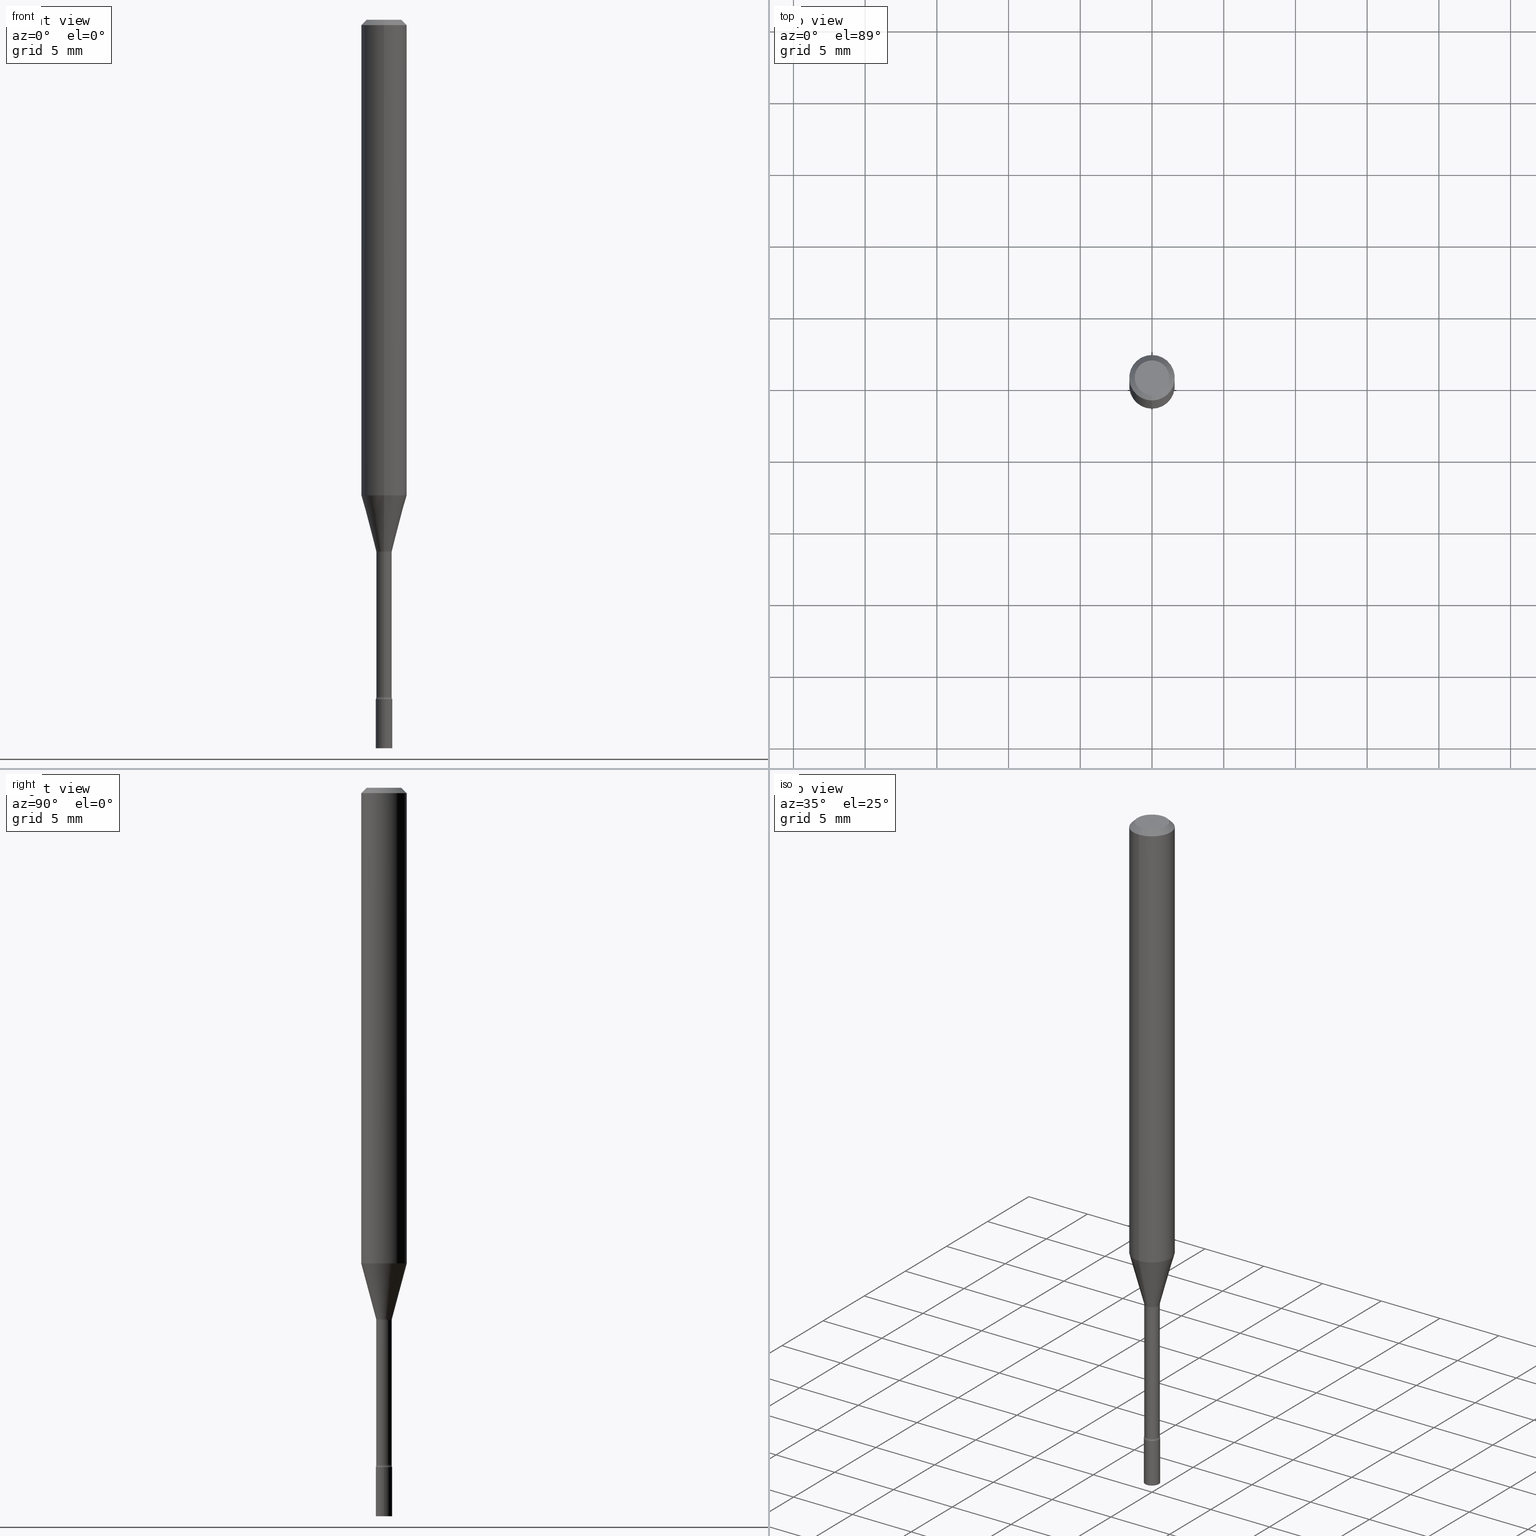
[diagram: canonical four-view strip — front | top / right | iso, engineering-drawing reading convention]
A machine part, canonical four-view strip (front | top / right | iso — engineering-drawing reading convention). The complete STEP part file that produces these views, byte-faithful:
ISO-10303-21;
HEADER;
FILE_DESCRIPTION (( 'STEP AP203' ),
    '1' );
FILE_NAME ('04302.STEP',
    '2024-03-08T22:59:19',
    ( '' ),
    ( '' ),
    'SwSTEP 2.0',
    'SolidWorks 2023',
    '' );
FILE_SCHEMA (( 'CONFIG_CONTROL_DESIGN' ));
ENDSEC;

DATA;
#1 = FACE_OUTER_BOUND ( 'NONE', #24, .T. ) ;
#2 = VERTEX_POINT ( 'NONE', #56 ) ;
#3 = CARTESIAN_POINT ( 'NONE',  ( 7.069349927902442587E-46, -1.009377494576416599E-31, -2.890883579152316100E-17 ) ) ;
#4 = ORIENTED_EDGE ( 'NONE', *, *, #378, .F. ) ;
#5 = PERSON_AND_ORGANIZATION ( #131, #226 ) ;
#6 = DIRECTION ( 'NONE',  ( -2.445394196737374022E-29, 3.491588183818847574E-15, 1.000000000000000000 ) ) ;
#7 = ORIENTED_EDGE ( 'NONE', *, *, #84, .F. ) ;
#8 = VECTOR ( 'NONE', #81, 39.37007874015748143 ) ;
#9 = EDGE_CURVE ( 'NONE', #171, #50, #23, .T. ) ;
#10 = DIRECTION ( 'NONE',  ( -6.982962677686265922E-15, -1.000000000000000000, 3.491588183818847574E-15 ) ) ;
#11 = VERTEX_POINT ( 'NONE', #217 ) ;
#12 = APPROVAL ( #31, 'UNSPECIFIED' ) ;
#13 = ORIENTED_EDGE ( 'NONE', *, *, #242, .F. ) ;
#14 = PRODUCT_DEFINITION ( 'UNKNOWN', '', #208, #504 ) ;
#15 = APPROVAL_DATE_TIME ( #375, #435 ) ;
#16 = ORIENTED_EDGE ( 'NONE', *, *, #218, .F. ) ;
#17 = DIRECTION ( 'NONE',  ( -6.982962677686265133E-15, -1.000000000000000000, 0.000000000000000000 ) ) ;
#18 = CARTESIAN_POINT ( 'NONE',  ( -2.524341007983227427E-16, -0.03615000000000510860, -1.461974787463810932 ) ) ;
#19 = PERSON_AND_ORGANIZATION_ROLE ( 'design_owner' ) ;
#20 = AXIS2_PLACEMENT_3D ( 'NONE', #3, #6, #285 ) ;
#21 = AXIS2_PLACEMENT_3D ( 'NONE', #359, #133, #261 ) ;
#22 = PERSON_AND_ORGANIZATION ( #131, #226 ) ;
#23 = CIRCLE ( 'NONE', #512, 0.01500000000000002720 ) ;
#24 = EDGE_LOOP ( 'NONE', ( #203, #134, #260, #246 ) ) ;
#25 = COORDINATED_UNIVERSAL_TIME_OFFSET ( 5, 0, .BEHIND. ) ;
#26 = DIRECTION ( 'NONE',  ( -6.982962677686265133E-15, -1.000000000000000000, 0.000000000000000000 ) ) ;
#27 = COORDINATED_UNIVERSAL_TIME_OFFSET ( 5, 0, .BEHIND. ) ;
#28 = DIRECTION ( 'NONE',  ( -1.000000000000000000, 6.982962677686265922E-15, -4.883557194083112340E-29 ) ) ;
#29 = FACE_OUTER_BOUND ( 'NONE', #259, .T. ) ;
#30 = CIRCLE ( 'NONE', #340, 0.02249999999999999917 ) ;
#31 = APPROVAL_STATUS ( 'not_yet_approved' ) ;
#32 = CYLINDRICAL_SURFACE ( 'NONE', #406, 0.02115000000000001601 ) ;
#33 = CIRCLE ( 'NONE', #71, 0.02166111260566397703 ) ;
#34 = CARTESIAN_POINT ( 'NONE',  ( 4.440892098500625669E-16, 0.06250000000000000000, -2.182242614886779734E-16 ) ) ;
#35 = CYLINDRICAL_SURFACE ( 'NONE', #49, 0.06250000000000000000 ) ;
#36 = DIRECTION ( 'NONE',  ( -2.445394196737374022E-29, 3.491588183818847574E-15, 1.000000000000000000 ) ) ;
#37 = DIRECTION ( 'NONE',  ( -2.445394196737374022E-29, 3.491588183818847574E-15, 1.000000000000000000 ) ) ;
#38 = PERSON_AND_ORGANIZATION_ROLE ( 'creator' ) ;
#39 = PLANE ( 'NONE',  #21 ) ;
#40 = CARTESIAN_POINT ( 'NONE',  ( 1.502797886133067365E-16, 0.02114999999999489511, -1.461974787463810932 ) ) ;
#41 = VERTEX_POINT ( 'NONE', #333 ) ;
#42 = FACE_OUTER_BOUND ( 'NONE', #344, .T. ) ;
#43 = APPROVAL ( #58, 'UNSPECIFIED' ) ;
#44 = ORIENTED_EDGE ( 'NONE', *, *, #464, .T. ) ;
#45 = DIRECTION ( 'NONE',  ( -6.982962677686265922E-15, -1.000000000000000000, 3.491588183818847574E-15 ) ) ;
#46 = EDGE_LOOP ( 'NONE', ( #62, #323, #178, #302 ) ) ;
#47 = EDGE_CURVE ( 'NONE', #41, #448, #227, .T. ) ;
#48 = CARTESIAN_POINT ( 'NONE',  ( -1.476896606330646500E-16, -0.02115000000000001601, 7.384709008776868973E-17 ) ) ;
#49 = AXIS2_PLACEMENT_3D ( 'NONE', #420, #149, #148 ) ;
#50 = VERTEX_POINT ( 'NONE', #379 ) ;
#51 = VECTOR ( 'NONE', #314, 39.37007874015748143 ) ;
#52 = PRODUCT ( '04302', '04302', '', ( #345 ) ) ;
#53 = ORIENTED_EDGE ( 'NONE', *, *, #326, .F. ) ;
#54 = EDGE_CURVE ( 'NONE', #171, #138, #334, .T. ) ;
#55 = ORIENTED_EDGE ( 'NONE', *, *, #182, .T. ) ;
#56 = CARTESIAN_POINT ( 'NONE',  ( 0.02249999999999999917, -7.140079337934232008E-15, -2.000000000000000000 ) ) ;
#57 = CC_DESIGN_APPROVAL ( #43, ( #208 ) ) ;
#58 = APPROVAL_STATUS ( 'not_yet_approved' ) ;
#59 = ORIENTED_EDGE ( 'NONE', *, *, #400, .T. ) ;
#60 = DIRECTION ( 'NONE',  ( -6.982962677686267499E-15, -1.000000000000000000, 0.000000000000000000 ) ) ;
#61 = ADVANCED_FACE ( 'NONE', ( #264 ), #103, .T. ) ;
#62 = ORIENTED_EDGE ( 'NONE', *, *, #400, .F. ) ;
#63 = VECTOR ( 'NONE', #142, 39.37007874015748143 ) ;
#64 = FACE_OUTER_BOUND ( 'NONE', #175, .T. ) ;
#65 = ADVANCED_FACE ( 'NONE', ( #508 ), #35, .T. ) ;
#66 = LINE ( 'NONE', #457, #51 ) ;
#67 = PERSON_AND_ORGANIZATION ( #131, #226 ) ;
#68 = PLANE ( 'NONE',  #427 ) ;
#69 = CARTESIAN_POINT ( 'NONE',  ( 0.000000000000000000, 0.000000000000000000, 0.000000000000000000 ) ) ;
#70 = CIRCLE ( 'NONE', #479, 0.02249999999999999917 ) ;
#71 = AXIS2_PLACEMENT_3D ( 'NONE', #204, #439, #85 ) ;
#72 = DIRECTION ( 'NONE',  ( -6.982962677686266711E-15, -1.000000000000000000, 3.491588183818847968E-15 ) ) ;
#73 = FACE_OUTER_BOUND ( 'NONE', #371, .T. ) ;
#74 = CARTESIAN_POINT ( 'NONE',  ( 3.668091295106068531E-31, -5.237382275728282109E-17, -0.01500000000000003067 ) ) ;
#75 = COORDINATED_UNIVERSAL_TIME_OFFSET ( 5, 0, .BEHIND. ) ;
#76 = DIRECTION ( 'NONE',  ( -2.445394196737374022E-29, 3.491588183818847574E-15, 1.000000000000000000 ) ) ;
#77 = PERSON_AND_ORGANIZATION ( #131, #226 ) ;
#78 = DIRECTION ( 'NONE',  ( -6.982962677686266711E-15, -1.000000000000000000, 0.000000000000000000 ) ) ;
#79 = CARTESIAN_POINT ( 'NONE',  ( -0.02249999999999999917, 1.598721155460225359E-16, -1.106760395307353780E-30 ) ) ;
#80 = AXIS2_PLACEMENT_3D ( 'NONE', #460, #273, #284 ) ;
#81 = DIRECTION ( 'NONE',  ( -2.445394196737373742E-29, 3.491588183818847574E-15, 1.000000000000000000 ) ) ;
#82 = ORIENTED_EDGE ( 'NONE', *, *, #415, .F. ) ;
#83 = CARTESIAN_POINT ( 'NONE',  ( 3.575213738171894647E-29, -5.104457688289070093E-15, -1.461974787463810932 ) ) ;
#84 = EDGE_CURVE ( 'NONE', #249, #138, #317, .T. ) ;
#85 = DIRECTION ( 'NONE',  ( -6.982962677686266711E-15, -1.000000000000000000, 0.000000000000000000 ) ) ;
#86 = APPLICATION_CONTEXT ( 'configuration controlled 3d designs of mechanical parts and assemblies' ) ;
#87 = AXIS2_PLACEMENT_3D ( 'NONE', #290, #329, #440 ) ;
#88 = CIRCLE ( 'NONE', #154, 0.02114999999999999519 ) ;
#89 = ORIENTED_EDGE ( 'NONE', *, *, #378, .T. ) ;
#90 = VECTOR ( 'NONE', #436, 39.37007874015748143 ) ;
#91 = ADVANCED_FACE ( 'NONE', ( #64 ), #225, .T. ) ;
#92 = ORIENTED_EDGE ( 'NONE', *, *, #218, .T. ) ;
#93 = DIRECTION ( 'NONE',  ( -2.445468806185136597E-29, 3.491481338843145583E-15, 1.000000000000000000 ) ) ;
#94 = DIRECTION ( 'NONE',  ( -6.982962677686266711E-15, -1.000000000000000000, 0.000000000000000000 ) ) ;
#95 = PERSON_AND_ORGANIZATION ( #131, #226 ) ;
#96 = DIRECTION ( 'NONE',  ( -1.807323732225328562E-15, -0.2588190451025179639, 0.9659258262890689783 ) ) ;
#97 = APPROVAL_PERSON_ORGANIZATION ( #388, #12, #358 ) ;
#98 = TOROIDAL_SURFACE ( 'NONE', #265, 0.03615000000000005015, 0.01500000000000000465 ) ;
#99 = DIRECTION ( 'NONE',  ( -6.982962677686266711E-15, -1.000000000000000000, 0.000000000000000000 ) ) ;
#100 = DIRECTION ( 'NONE',  ( -6.982962677686266711E-15, -1.000000000000000000, 0.000000000000000000 ) ) ;
#101 = ADVANCED_FACE ( 'NONE', ( #305 ), #230, .T. ) ;
#102 = LINE ( 'NONE', #221, #298 ) ;
#103 = CYLINDRICAL_SURFACE ( 'NONE', #207, 0.06250000000000000000 ) ;
#104 =( LENGTH_UNIT ( ) NAMED_UNIT ( * ) SI_UNIT ( $, .METRE. ) );
#105 = CARTESIAN_POINT ( 'NONE',  ( 3.840629472727447874E-16, 0.04749999999999999362, -1.947592745229184119E-16 ) ) ;
#106 = CIRCLE ( 'NONE', #366, 0.06250000000000000000 ) ;
#107 = DIRECTION ( 'NONE',  ( -2.445394196737374022E-29, 3.491588183818847574E-15, 1.000000000000000000 ) ) ;
#108 = CARTESIAN_POINT ( 'NONE',  ( 3.575213738171894647E-29, -5.104457688289070093E-15, -1.461974787463810932 ) ) ;
#109 = EDGE_CURVE ( 'NONE', #488, #498, #139, .T. ) ;
#110 = CARTESIAN_POINT ( 'NONE',  ( 4.890937612370273194E-29, -6.982962677686291165E-15, -2.000000000000000000 ) ) ;
#111 = DATE_AND_TIME ( #150, #516 ) ;
#112 = DIRECTION ( 'NONE',  ( -2.445394196737374022E-29, 3.491588183818847574E-15, 1.000000000000000000 ) ) ;
#113 = CARTESIAN_POINT ( 'NONE',  ( -4.364351673553598685E-16, -0.06250000000000457967, -1.305679699107026970 ) ) ;
#114 = DIRECTION ( 'NONE',  ( 1.000000000000000000, -6.982962677686269077E-15, 0.000000000000000000 ) ) ;
#115 = CIRCLE ( 'NONE', #210, 0.02114999999999999519 ) ;
#116 = DATE_AND_TIME ( #276, #357 ) ;
#117 = FACE_OUTER_BOUND ( 'NONE', #454, .T. ) ;
#118 = CLOSED_SHELL ( 'NONE', ( #409, #429, #268, #125 ) ) ;
#119 = DIRECTION ( 'NONE',  ( -6.982962677686265922E-15, -1.000000000000000000, 3.491588183818847574E-15 ) ) ;
#120 = EDGE_CURVE ( 'NONE', #249, #443, #389, .T. ) ;
#121 = CARTESIAN_POINT ( 'NONE',  ( -0.02249999999999999917, -6.587415571768355639E-15, -2.000000000000000000 ) ) ;
#122 = PRODUCT_DEFINITION_SHAPE ( 'NONE', 'NONE',  #14 ) ;
#123 = DIRECTION ( 'NONE',  ( -4.851104656540964275E-15, -0.7071067811865500152, -0.7071067811865450192 ) ) ;
#124 = ORIENTED_EDGE ( 'NONE', *, *, #47, .F. ) ;
#125 = ADVANCED_FACE ( 'NONE', ( #238 ), #186, .T. ) ;
#126 = LOCAL_TIME ( 17, 59, 19.00000000000000000, #25 ) ;
#127 = CYLINDRICAL_SURFACE ( 'NONE', #405, 0.02249999999999999917 ) ;
#128 = AXIS2_PLACEMENT_3D ( 'NONE', #194, #229, #385 ) ;
#129 = EDGE_LOOP ( 'NONE', ( #16, #283, #361, #293 ) ) ;
#130 = FACE_OUTER_BOUND ( 'NONE', #129, .T. ) ;
#131 = PERSON ( 'UNSPECIFIED', 'UNSPECIFIED', 'UNSPECIFIED', ('UNSPECIFIED'), ('UNSPECIFIED'), ('UNSPECIFIED') ) ;
#132 = ORIENTED_EDGE ( 'NONE', *, *, #109, .T. ) ;
#133 = DIRECTION ( 'NONE',  ( 2.445394196737373742E-29, -3.491588183818847574E-15, -1.000000000000000000 ) ) ;
#134 = ORIENTED_EDGE ( 'NONE', *, *, #339, .F. ) ;
#135 = LENGTH_MEASURE_WITH_UNIT ( LENGTH_MEASURE( 0.02539999999999999897 ), #104 );
#136 = ORIENTED_EDGE ( 'NONE', *, *, #109, .F. ) ;
#137 = ADVANCED_FACE ( 'NONE', ( #29 ), #189, .T. ) ;
#138 = VERTEX_POINT ( 'NONE', #113 ) ;
#139 = CIRCLE ( 'NONE', #338, 0.02249999999999999917 ) ;
#140 = AXIS2_PLACEMENT_3D ( 'NONE', #368, #157, #10 ) ;
#141 = APPLICATION_CONTEXT ( 'configuration controlled 3d designs of mechanical parts and assemblies' ) ;
#142 = DIRECTION ( 'NONE',  ( 4.937700262164548042E-15, 0.7071067811865451302, -0.7071067811865499042 ) ) ;
#143 = CARTESIAN_POINT ( 'NONE',  ( 4.364351673553919652E-16, 0.06249999999999995143, -0.01500000000000024751 ) ) ;
#144 = EDGE_LOOP ( 'NONE', ( #82, #167, #292, #383 ) ) ;
#145 = EDGE_CURVE ( 'NONE', #372, #2, #179, .T. ) ;
#146 = DIRECTION ( 'NONE',  ( -2.445394196737374022E-29, 3.491588183818847574E-15, 1.000000000000000000 ) ) ;
#147 = CIRCLE ( 'NONE', #316, 0.02249999999999999917 ) ;
#148 = DIRECTION ( 'NONE',  ( -6.982962677686265922E-15, -1.000000000000000000, 3.491588183818847574E-15 ) ) ;
#149 = DIRECTION ( 'NONE',  ( -2.445394196737374022E-29, 3.491588183818847574E-15, 1.000000000000000000 ) ) ;
#150 = CALENDAR_DATE ( 2024, 8, 3 ) ;
#151 = EDGE_CURVE ( 'NONE', #41, #498, #407, .T. ) ;
#152 = FACE_OUTER_BOUND ( 'NONE', #144, .T. ) ;
#153 = AXIS2_PLACEMENT_3D ( 'NONE', #110, #355, #348 ) ;
#154 = AXIS2_PLACEMENT_3D ( 'NONE', #490, #301, #99 ) ;
#155 = DIRECTION ( 'NONE',  ( 1.000000000000000000, -6.982962677686269077E-15, 0.000000000000000000 ) ) ;
#156 = CONICAL_SURFACE ( 'NONE', #166, 0.06250000000000000000, 0.7853981633974483900 ) ;
#157 = DIRECTION ( 'NONE',  ( -2.445394196737373742E-29, 3.491588183818847574E-15, 1.000000000000000000 ) ) ;
#158 = DIRECTION ( 'NONE',  ( -6.982962677686266711E-15, -1.000000000000000000, 3.491588183818847968E-15 ) ) ;
#159 = ORIENTED_EDGE ( 'NONE', *, *, #202, .F. ) ;
#160 = EDGE_CURVE ( 'NONE', #2, #336, #66, .T. ) ;
#161 = DIRECTION ( 'NONE',  ( -2.445394196737374022E-29, 3.491588183818847574E-15, 1.000000000000000000 ) ) ;
#162 = ORIENTED_EDGE ( 'NONE', *, *, #392, .T. ) ;
#163 = MANIFOLD_SOLID_BREP ( 'Body-Move/Copy2[1]', #118 ) ;
#164 = LOCAL_TIME ( 17, 59, 19.00000000000000000, #75 ) ;
#165 = DIRECTION ( 'NONE',  ( -2.445394196737374022E-29, 3.491588183818847574E-15, 1.000000000000000000 ) ) ;
#166 = AXIS2_PLACEMENT_3D ( 'NONE', #306, #184, #346 ) ;
#167 = ORIENTED_EDGE ( 'NONE', *, *, #291, .T. ) ;
#168 = DIRECTION ( 'NONE',  ( 1.000000000000000000, -6.982962677686266711E-15, 4.876176775795935793E-29 ) ) ;
#169 = VERTEX_POINT ( 'NONE', #105 ) ;
#170 = ADVANCED_FACE ( 'NONE', ( #152 ), #156, .T. ) ;
#171 = VERTEX_POINT ( 'NONE', #312 ) ;
#172 = CIRCLE ( 'NONE', #496, 0.01500000000000000638 ) ;
#173 = ORIENTED_EDGE ( 'NONE', *, *, #120, .F. ) ;
#174 = PERSON_AND_ORGANIZATION ( #131, #226 ) ;
#175 = EDGE_LOOP ( 'NONE', ( #363, #53, #492, #89 ) ) ;
#176 = EDGE_CURVE ( 'NONE', #195, #443, #425, .T. ) ;
#177 = ORIENTED_EDGE ( 'NONE', *, *, #331, .T. ) ;
#178 = ORIENTED_EDGE ( 'NONE', *, *, #517, .T. ) ;
#179 = CIRCLE ( 'NONE', #153, 0.02249999999999999917 ) ;
#180 = CLOSED_SHELL ( 'NONE', ( #228, #101, #192, #170, #61, #419, #137, #65, #91, #483, #354, #280, #444, #370 ) ) ;
#181 = APPROVAL_STATUS ( 'not_yet_approved' ) ;
#182 = EDGE_CURVE ( 'NONE', #11, #336, #70, .T. ) ;
#183 = CALENDAR_DATE ( 2024, 8, 3 ) ;
#184 = DIRECTION ( 'NONE',  ( 2.445394196737374022E-29, -3.491588183818847574E-15, -1.000000000000000000 ) ) ;
#185 = SECURITY_CLASSIFICATION_LEVEL ( 'unclassified' ) ;
#186 = PLANE ( 'NONE',  #442 ) ;
#187 = UNCERTAINTY_MEASURE_WITH_UNIT (LENGTH_MEASURE( 1.000000000000000082E-05 ), #266, 'distance_accuracy_value', 'NONE');
#188 = AXIS2_PLACEMENT_3D ( 'NONE', #108, #510, #318 ) ;
#189 = CONICAL_SURFACE ( 'NONE', #275, 0.02166111260566397703, 0.2617993877991501295 ) ;
#190 = CARTESIAN_POINT ( 'NONE',  ( 0.000000000000000000, 0.000000000000000000, 0.000000000000000000 ) ) ;
#191 = CARTESIAN_POINT ( 'NONE',  ( 1.571166602479899005E-16, 0.02249999999999301517, -2.000000000000000000 ) ) ;
#192 = ADVANCED_FACE ( 'NONE', ( #271 ), #98, .F. ) ;
#193 = DIRECTION ( 'NONE',  ( -2.445468806185136597E-29, 3.491481338843145583E-15, 1.000000000000000000 ) ) ;
#194 = CARTESIAN_POINT ( 'NONE',  ( 3.192901558994125594E-29, -4.558895809254244772E-15, -1.305679699107027414 ) ) ;
#195 = VERTEX_POINT ( 'NONE', #431 ) ;
#196 = CARTESIAN_POINT ( 'NONE',  ( 4.560799323535279574E-29, -6.511612696942466269E-15, -1.864999999999999991 ) ) ;
#197 = DIRECTION ( 'NONE',  ( -2.445394196737373742E-29, 3.491588183818847574E-15, 1.000000000000000000 ) ) ;
#198 = CIRCLE ( 'NONE', #397, 0.02249999999999999917 ) ;
#199 = DIRECTION ( 'NONE',  ( -2.445394196737374022E-29, 3.491588183818847574E-15, 1.000000000000000000 ) ) ;
#200 = CC_DESIGN_DATE_AND_TIME_ASSIGNMENT ( #319, #232, ( #477 ) ) ;
#201 = PLANE ( 'NONE',  #140 ) ;
#202 = EDGE_CURVE ( 'NONE', #138, #195, #241, .T. ) ;
#203 = ORIENTED_EDGE ( 'NONE', *, *, #212, .F. ) ;
#204 = CARTESIAN_POINT ( 'NONE',  ( 3.565610942176876838E-29, -5.091058550155305219E-15, -1.458092501787273010 ) ) ;
#205 = EDGE_LOOP ( 'NONE', ( #267, #341 ) ) ;
#206 = CARTESIAN_POINT ( 'NONE',  ( 3.575104661040359026E-29, -5.104613892949713451E-15, -1.461974787463810932 ) ) ;
#207 = AXIS2_PLACEMENT_3D ( 'NONE', #220, #377, #501 ) ;
#208 = PRODUCT_DEFINITION_FORMATION_WITH_SPECIFIED_SOURCE ( 'ANY', '', #52, .NOT_KNOWN. ) ;
#209 = CARTESIAN_POINT ( 'NONE',  ( 0.02249999999999999917, -6.668729357190407112E-15, -1.864999999999999991 ) ) ;
#210 = AXIS2_PLACEMENT_3D ( 'NONE', #206, #476, #365 ) ;
#211 = EDGE_LOOP ( 'NONE', ( #124, #213, #252, #434 ) ) ;
#212 = EDGE_CURVE ( 'NONE', #250, #307, #495, .T. ) ;
#213 = ORIENTED_EDGE ( 'NONE', *, *, #151, .T. ) ;
#214 = ORIENTED_EDGE ( 'NONE', *, *, #54, .F. ) ;
#215 = CARTESIAN_POINT ( 'NONE',  ( 0.000000000000000000, 0.000000000000000000, 0.000000000000000000 ) ) ;
#216 = APPROVAL_PERSON_ORGANIZATION ( #5, #43, #219 ) ;
#217 = CARTESIAN_POINT ( 'NONE',  ( -0.02249999999999999917, -6.587415571768355639E-15, -1.864999999999999991 ) ) ;
#218 = EDGE_CURVE ( 'NONE', #372, #11, #327, .T. ) ;
#219 = APPROVAL_ROLE ( '' ) ;
#220 = CARTESIAN_POINT ( 'NONE',  ( 0.000000000000000000, 0.000000000000000000, 0.000000000000000000 ) ) ;
#221 = CARTESIAN_POINT ( 'NONE',  ( 1.539114621043963911E-16, 0.02166111260565888735, -1.458092501787273010 ) ) ;
#222 = ORIENTED_EDGE ( 'NONE', *, *, #384, .F. ) ;
#223 = CC_DESIGN_DATE_AND_TIME_ASSIGNMENT ( #473, #462, ( #14 ) ) ;
#224 = DIRECTION ( 'NONE',  ( 1.000000000000000000, 0.000000000000000000, 0.000000000000000000 ) ) ;
#225 = CONICAL_SURFACE ( 'NONE', #414, 0.06250000000000000000, 0.7853981633974483900 ) ;
#226 = ORGANIZATION ( 'UNSPECIFIED', 'UNSPECIFIED', '' ) ;
#227 = CIRCLE ( 'NONE', #325, 0.02115000000000004376 ) ;
#228 = ADVANCED_FACE ( 'NONE', ( #481 ), #258, .F. ) ;
#229 = DIRECTION ( 'NONE',  ( -2.445394196737374022E-29, 3.491588183818847574E-15, 1.000000000000000000 ) ) ;
#230 = CYLINDRICAL_SURFACE ( 'NONE', #356, 0.02115000000000001601 ) ;
#231 = DIRECTION ( 'NONE',  ( 1.000000000000000000, -6.982962677686269077E-15, 0.000000000000000000 ) ) ;
#232 = DATE_TIME_ROLE ( 'classification_date' ) ;
#233 = DIRECTION ( 'NONE',  ( 1.000000000000000000, -6.982962677686265922E-15, 4.876176775795935793E-29 ) ) ;
#234 = CARTESIAN_POINT ( 'NONE',  ( 4.560660176915202525E-29, -6.511811962822150720E-15, -1.864999999999999991 ) ) ;
#235 = EDGE_CURVE ( 'NONE', #41, #307, #245, .T. ) ;
#236 = CC_DESIGN_SECURITY_CLASSIFICATION ( #477, ( #208 ) ) ;
#237 = AXIS2_PLACEMENT_3D ( 'NONE', #402, #324, #282 ) ;
#238 = FACE_OUTER_BOUND ( 'NONE', #410, .T. ) ;
#239 = APPROVAL_DATE_TIME ( #116, #12 ) ;
#240 = CARTESIAN_POINT ( 'NONE',  ( 4.545451967830983936E-29, -6.490097343884086804E-15, -1.858780876267511539 ) ) ;
#241 = LINE ( 'NONE', #394, #367 ) ;
#242 = EDGE_CURVE ( 'NONE', #448, #50, #396, .T. ) ;
#243 = COORDINATED_UNIVERSAL_TIME_OFFSET ( 5, 0, .BEHIND. ) ;
#244 = CARTESIAN_POINT ( 'NONE',  ( 4.890937612370273194E-29, -6.982962677686291165E-15, -2.000000000000000000 ) ) ;
#245 = LINE ( 'NONE', #251, #90 ) ;
#246 = ORIENTED_EDGE ( 'NONE', *, *, #255, .T. ) ;
#247 =( GEOMETRIC_REPRESENTATION_CONTEXT ( 3 ) GLOBAL_UNCERTAINTY_ASSIGNED_CONTEXT ( ( #187 ) ) GLOBAL_UNIT_ASSIGNED_CONTEXT ( ( #266, #493, #411 ) ) REPRESENTATION_CONTEXT ( 'NONE', 'WORKASPACE' ) );
#248 = CARTESIAN_POINT ( 'NONE',  ( -3.773273898774340269E-16, -0.04749999999999999362, 1.369416029398720899E-16 ) ) ;
#249 = VERTEX_POINT ( 'NONE', #404 ) ;
#250 = VERTEX_POINT ( 'NONE', #322 ) ;
#251 = CARTESIAN_POINT ( 'NONE',  ( 1.502797886132612784E-16, 0.02115000000000001601, -7.384709008776868973E-17 ) ) ;
#252 = ORIENTED_EDGE ( 'NONE', *, *, #489, .T. ) ;
#253 = FACE_OUTER_BOUND ( 'NONE', #408, .T. ) ;
#254 = ORIENTED_EDGE ( 'NONE', *, *, #202, .T. ) ;
#255 = EDGE_CURVE ( 'NONE', #50, #307, #115, .T. ) ;
#256 = CIRCLE ( 'NONE', #20, 0.04749999999999999362 ) ;
#257 = CONICAL_SURFACE ( 'NONE', #469, 0.02166111260566397703, 0.2617993877991501295 ) ;
#258 = TOROIDAL_SURFACE ( 'NONE', #428, 0.03615000000000000158, 0.01500000000000003067 ) ;
#259 = EDGE_LOOP ( 'NONE', ( #486, #59, #452, #7 ) ) ;
#260 = ORIENTED_EDGE ( 'NONE', *, *, #9, .T. ) ;
#261 = DIRECTION ( 'NONE',  ( 6.982962677686265922E-15, 1.000000000000000000, -3.491588183818847574E-15 ) ) ;
#262 = EDGE_LOOP ( 'NONE', ( #173, #484, #254, #4 ) ) ;
#263 = AXIS2_PLACEMENT_3D ( 'NONE', #240, #199, #78 ) ;
#264 = FACE_OUTER_BOUND ( 'NONE', #401, .T. ) ;
#265 = AXIS2_PLACEMENT_3D ( 'NONE', #426, #278, #119 ) ;
#266 =( CONVERSION_BASED_UNIT ( 'INCH', #135 ) LENGTH_UNIT ( ) NAMED_UNIT ( #480 ) );
#267 = ORIENTED_EDGE ( 'NONE', *, *, #326, .T. ) ;
#268 = ADVANCED_FACE ( 'NONE', ( #130 ), #127, .T. ) ;
#269 = DIRECTION ( 'NONE',  ( -2.445468806185136597E-29, 3.491481338843145583E-15, 1.000000000000000000 ) ) ;
#270 = LOCAL_TIME ( 17, 59, 19.00000000000000000, #243 ) ;
#271 = FACE_OUTER_BOUND ( 'NONE', #211, .T. ) ;
#272 = CARTESIAN_POINT ( 'NONE',  ( 2.568611989773219823E-16, 0.03614999999999356228, -1.858780876267511539 ) ) ;
#273 = DIRECTION ( 'NONE',  ( -2.445394196737374022E-29, 3.491588183818847574E-15, 1.000000000000000000 ) ) ;
#274 = VECTOR ( 'NONE', #433, 39.37007874015748143 ) ;
#275 = AXIS2_PLACEMENT_3D ( 'NONE', #502, #146, #350 ) ;
#276 = CALENDAR_DATE ( 2024, 8, 3 ) ;
#277 = FACE_OUTER_BOUND ( 'NONE', #328, .T. ) ;
#278 = DIRECTION ( 'NONE',  ( -2.445394196737374022E-29, 3.491588183818847574E-15, 1.000000000000000000 ) ) ;
#279 = CC_DESIGN_PERSON_AND_ORGANIZATION_ASSIGNMENT ( #511, #38, ( #208 ) ) ;
#280 = ADVANCED_FACE ( 'NONE', ( #253 ), #300, .F. ) ;
#281 = CARTESIAN_POINT ( 'NONE',  ( 3.565610942176876838E-29, -5.091058550155305219E-15, -1.458092501787273010 ) ) ;
#282 = DIRECTION ( 'NONE',  ( 7.105427357601001859E-15, 1.000000000000000000, 0.000000000000000000 ) ) ;
#283 = ORIENTED_EDGE ( 'NONE', *, *, #145, .T. ) ;
#284 = DIRECTION ( 'NONE',  ( -6.982962677686266711E-15, -1.000000000000000000, 3.491588183818847968E-15 ) ) ;
#285 = DIRECTION ( 'NONE',  ( -6.982962677686266711E-15, -1.000000000000000000, 3.491588183818847968E-15 ) ) ;
#286 = VERTEX_POINT ( 'NONE', #248 ) ;
#287 = TOROIDAL_SURFACE ( 'NONE', #188, 0.03615000000000000158, 0.01500000000000003067 ) ;
#288 = CARTESIAN_POINT ( 'NONE',  ( -4.287811248607203282E-16, -0.06250000000000005551, -0.01499999999999981209 ) ) ;
#289 = ORIENTED_EDGE ( 'NONE', *, *, #464, .F. ) ;
#290 = CARTESIAN_POINT ( 'NONE',  ( 3.192901558994125594E-29, -4.558895809254244772E-15, -1.305679699107027414 ) ) ;
#291 = EDGE_CURVE ( 'NONE', #286, #195, #360, .T. ) ;
#292 = ORIENTED_EDGE ( 'NONE', *, *, #176, .T. ) ;
#293 = ORIENTED_EDGE ( 'NONE', *, *, #182, .F. ) ;
#294 = DIRECTION ( 'NONE',  ( -2.445394196737374022E-29, 3.491588183818847574E-15, 1.000000000000000000 ) ) ;
#295 = CARTESIAN_POINT ( 'NONE',  ( -2.524341007983133750E-16, -0.03615000000000653801, -1.858780876267511539 ) ) ;
#296 = APPLICATION_PROTOCOL_DEFINITION ( 'international standard', 'config_control_design', 1994, #86 ) ;
#297 = CARTESIAN_POINT ( 'NONE',  ( 4.545451967830983936E-29, -6.490097343884086804E-15, -1.858780876267511539 ) ) ;
#298 = VECTOR ( 'NONE', #337, 39.37007874015747433 ) ;
#299 = EDGE_LOOP ( 'NONE', ( #451, #441, #412, #13 ) ) ;
#300 = TOROIDAL_SURFACE ( 'NONE', #466, 0.03615000000000005015, 0.01500000000000000465 ) ;
#301 = DIRECTION ( 'NONE',  ( -2.445394196737374022E-29, 3.491588183818847574E-15, 1.000000000000000000 ) ) ;
#302 = ORIENTED_EDGE ( 'NONE', *, *, #9, .F. ) ;
#303 = ORIENTED_EDGE ( 'NONE', *, *, #145, .F. ) ;
#304 = CARTESIAN_POINT ( 'NONE',  ( 1.598721155460681419E-16, 0.02249999999999349048, -1.864999999999999991 ) ) ;
#305 = FACE_OUTER_BOUND ( 'NONE', #299, .T. ) ;
#306 = CARTESIAN_POINT ( 'NONE',  ( 3.668091295106068531E-31, -5.237382275728282109E-17, -0.01500000000000003067 ) ) ;
#307 = VERTEX_POINT ( 'NONE', #40 ) ;
#308 = DIRECTION ( 'NONE',  ( 7.105427357601001859E-15, 1.000000000000000000, 0.000000000000000000 ) ) ;
#309 = CALENDAR_DATE ( 2024, 8, 3 ) ;
#310 = APPROVAL_DATE_TIME ( #111, #43 ) ;
#311 = CYLINDRICAL_SURFACE ( 'NONE', #458, 0.02249999999999999917 ) ;
#312 = CARTESIAN_POINT ( 'NONE',  ( -1.512587408824754200E-16, -0.02166111260566907018, -1.458092501787273010 ) ) ;
#313 = PERSON_AND_ORGANIZATION_ROLE ( 'classification_officer' ) ;
#314 = DIRECTION ( 'NONE',  ( -2.445468806185136877E-29, 3.491481338843145188E-15, 1.000000000000000000 ) ) ;
#315 = CIRCLE ( 'NONE', #87, 0.06250000000000000000 ) ;
#316 = AXIS2_PLACEMENT_3D ( 'NONE', #376, #107, #17 ) ;
#317 = CIRCLE ( 'NONE', #128, 0.06250000000000000000 ) ;
#318 = DIRECTION ( 'NONE',  ( -6.982962677686265922E-15, -1.000000000000000000, 3.491588183818847574E-15 ) ) ;
#319 = DATE_AND_TIME ( #422, #270 ) ;
#320 = DIRECTION ( 'NONE',  ( -2.445468806185136597E-29, 3.491481338843145583E-15, 1.000000000000000000 ) ) ;
#321 = FACE_OUTER_BOUND ( 'NONE', #438, .T. ) ;
#322 = CARTESIAN_POINT ( 'NONE',  ( 2.990003359772455890E-16, 0.02166111260565888735, -1.458092501787273010 ) ) ;
#323 = ORIENTED_EDGE ( 'NONE', *, *, #212, .T. ) ;
#324 = DIRECTION ( 'NONE',  ( 1.000000000000000000, -7.105427357601001070E-15, 4.926316817015656989E-29 ) ) ;
#325 = AXIS2_PLACEMENT_3D ( 'NONE', #297, #294, #100 ) ;
#326 = EDGE_CURVE ( 'NONE', #169, #286, #256, .T. ) ;
#327 = LINE ( 'NONE', #79, #274 ) ;
#328 = EDGE_LOOP ( 'NONE', ( #416, #491, #373, #214 ) ) ;
#329 = DIRECTION ( 'NONE',  ( -2.445394196737374022E-29, 3.491588183818847574E-15, 1.000000000000000000 ) ) ;
#330 = ORIENTED_EDGE ( 'NONE', *, *, #47, .T. ) ;
#331 = EDGE_CURVE ( 'NONE', #138, #249, #315, .T. ) ;
#332 = ORIENTED_EDGE ( 'NONE', *, *, #450, .F. ) ;
#333 = CARTESIAN_POINT ( 'NONE',  ( 1.550759520796875748E-16, 0.02114999999999355590, -1.858780876267511539 ) ) ;
#334 = LINE ( 'NONE', #455, #446 ) ;
#335 = CARTESIAN_POINT ( 'NONE',  ( -1.571166602478953851E-16, -0.02250000000000651132, -1.864999999999999991 ) ) ;
#336 = VERTEX_POINT ( 'NONE', #209 ) ;
#337 = DIRECTION ( 'NONE',  ( 1.839019923739599526E-15, 0.2588190451025248473, 0.9659258262890673130 ) ) ;
#338 = AXIS2_PLACEMENT_3D ( 'NONE', #234, #37, #26 ) ;
#339 = EDGE_CURVE ( 'NONE', #171, #250, #33, .T. ) ;
#340 = AXIS2_PLACEMENT_3D ( 'NONE', #244, #507, #155 ) ;
#341 = ORIENTED_EDGE ( 'NONE', *, *, #415, .T. ) ;
#342 = AXIS2_PLACEMENT_3D ( 'NONE', #459, #468, #352 ) ;
#343 = DIRECTION ( 'NONE',  ( 0.000000000000000000, 0.000000000000000000, 1.000000000000000000 ) ) ;
#344 = EDGE_LOOP ( 'NONE', ( #136, #398 ) ) ;
#345 = MECHANICAL_CONTEXT ( 'NONE', #86, 'mechanical' ) ;
#346 = DIRECTION ( 'NONE',  ( 6.982962677686265922E-15, 1.000000000000000000, -3.483106191921935554E-15 ) ) ;
#347 = CC_DESIGN_PERSON_AND_ORGANIZATION_ASSIGNMENT ( #174, #449, ( #14 ) ) ;
#348 = DIRECTION ( 'NONE',  ( 1.000000000000000000, -6.982962677686269077E-15, 0.000000000000000000 ) ) ;
#349 = AXIS2_PLACEMENT_3D ( 'NONE', #215, #343, #224 ) ;
#350 = DIRECTION ( 'NONE',  ( -6.982962677686266711E-15, -1.000000000000000000, 0.000000000000000000 ) ) ;
#351 = DIRECTION ( 'NONE',  ( -6.982962677686266711E-15, -1.000000000000000000, 0.000000000000000000 ) ) ;
#352 = DIRECTION ( 'NONE',  ( -6.982962677686265922E-15, -1.000000000000000000, 3.483106191921935554E-15 ) ) ;
#353 = DIRECTION ( 'NONE',  ( -6.982962677686266711E-15, -1.000000000000000000, 0.000000000000000000 ) ) ;
#354 = ADVANCED_FACE ( 'NONE', ( #42 ), #201, .F. ) ;
#355 = DIRECTION ( 'NONE',  ( -2.445468806185136597E-29, 3.491481338843145583E-15, 1.000000000000000000 ) ) ;
#356 = AXIS2_PLACEMENT_3D ( 'NONE', #69, #424, #72 ) ;
#357 = LOCAL_TIME ( 17, 59, 19.00000000000000000, #506 ) ;
#358 = APPROVAL_ROLE ( '' ) ;
#359 = CARTESIAN_POINT ( 'NONE',  ( 3.316907271900976096E-16, 0.04749999999999999362, -1.803048566271568437E-16 ) ) ;
#360 = LINE ( 'NONE', #288, #497 ) ;
#361 = ORIENTED_EDGE ( 'NONE', *, *, #160, .T. ) ;
#362 = DIRECTION ( 'NONE',  ( -6.982962677686265922E-15, -1.000000000000000000, 3.491588183818847574E-15 ) ) ;
#363 = ORIENTED_EDGE ( 'NONE', *, *, #291, .F. ) ;
#364 = CARTESIAN_POINT ( 'NONE',  ( 4.560799323535279574E-29, -6.511612696942466269E-15, -1.864999999999999991 ) ) ;
#365 = DIRECTION ( 'NONE',  ( -6.982962677686266711E-15, -1.000000000000000000, 0.000000000000000000 ) ) ;
#366 = AXIS2_PLACEMENT_3D ( 'NONE', #432, #76, #518 ) ;
#367 = VECTOR ( 'NONE', #197, 39.37007874015748143 ) ;
#368 = CARTESIAN_POINT ( 'NONE',  ( 1.571166602479865971E-16, 0.02249999999999349048, -1.864999999999999991 ) ) ;
#369 = ORIENTED_EDGE ( 'NONE', *, *, #151, .F. ) ;
#370 = ADVANCED_FACE ( 'NONE', ( #1 ), #287, .F. ) ;
#371 = EDGE_LOOP ( 'NONE', ( #482, #330, #386, #447 ) ) ;
#372 = VERTEX_POINT ( 'NONE', #121 ) ;
#373 = ORIENTED_EDGE ( 'NONE', *, *, #331, .F. ) ;
#374 = CIRCLE ( 'NONE', #263, 0.02115000000000004376 ) ;
#375 = DATE_AND_TIME ( #183, #126 ) ;
#376 = CARTESIAN_POINT ( 'NONE',  ( 4.560660176915202525E-29, -6.511811962822150720E-15, -1.864999999999999991 ) ) ;
#377 = DIRECTION ( 'NONE',  ( -2.445394196737374022E-29, 3.491588183818847574E-15, 1.000000000000000000 ) ) ;
#378 = EDGE_CURVE ( 'NONE', #443, #195, #106, .T. ) ;
#379 = CARTESIAN_POINT ( 'NONE',  ( -1.476896606330287322E-16, -0.02115000000000510222, -1.461974787463810932 ) ) ;
#380 = APPLICATION_PROTOCOL_DEFINITION ( 'international standard', 'config_control_design', 1994, #141 ) ;
#381 = AXIS2_PLACEMENT_3D ( 'NONE', #272, #390, #308 ) ;
#382 = ORIENTED_EDGE ( 'NONE', *, *, #120, .T. ) ;
#383 = ORIENTED_EDGE ( 'NONE', *, *, #505, .F. ) ;
#384 = EDGE_CURVE ( 'NONE', #336, #11, #198, .T. ) ;
#385 = DIRECTION ( 'NONE',  ( -6.982962677686265922E-15, -1.000000000000000000, 4.370956789862821150E-15 ) ) ;
#386 = ORIENTED_EDGE ( 'NONE', *, *, #242, .T. ) ;
#387 = DIRECTION ( 'NONE',  ( -1.000000000000000000, 6.982962677686265922E-15, -4.876176775795935793E-29 ) ) ;
#388 = PERSON_AND_ORGANIZATION ( #131, #226 ) ;
#389 = LINE ( 'NONE', #34, #470 ) ;
#390 = DIRECTION ( 'NONE',  ( 1.000000000000000000, -7.105427357601001070E-15, 4.926316817015656989E-29 ) ) ;
#391 = PRODUCT_RELATED_PRODUCT_CATEGORY ( 'detail', '', ( #52 ) ) ;
#392 = EDGE_CURVE ( 'NONE', #448, #488, #172, .T. ) ;
#393 = SHAPE_DEFINITION_REPRESENTATION ( #122, #463 ) ;
#394 = CARTESIAN_POINT ( 'NONE',  ( -4.364351673553916201E-16, -0.06250000000000000000, 2.182242614886779734E-16 ) ) ;
#395 = CARTESIAN_POINT ( 'NONE',  ( 4.440892098500946636E-16, 0.06249999999999993755, -0.01500000000000024751 ) ) ;
#396 = LINE ( 'NONE', #48, #8 ) ;
#397 = AXIS2_PLACEMENT_3D ( 'NONE', #364, #93, #231 ) ;
#398 = ORIENTED_EDGE ( 'NONE', *, *, #489, .F. ) ;
#399 = CARTESIAN_POINT ( 'NONE',  ( 4.545590650445673704E-29, -6.489898742486526882E-15, -1.858780876267511539 ) ) ;
#400 = EDGE_CURVE ( 'NONE', #250, #171, #487, .T. ) ;
#401 = EDGE_LOOP ( 'NONE', ( #177, #382, #417, #159 ) ) ;
#402 = CARTESIAN_POINT ( 'NONE',  ( 2.568611989773119737E-16, 0.03614999999999489455, -1.461974787463810932 ) ) ;
#403 = ORIENTED_EDGE ( 'NONE', *, *, #384, .T. ) ;
#404 = CARTESIAN_POINT ( 'NONE',  ( 4.440892098500943678E-16, 0.06249999999999542033, -1.305679699107027636 ) ) ;
#405 = AXIS2_PLACEMENT_3D ( 'NONE', #475, #320, #168 ) ;
#406 = AXIS2_PLACEMENT_3D ( 'NONE', #190, #112, #158 ) ;
#407 = CIRCLE ( 'NONE', #381, 0.01500000000000000638 ) ;
#408 = EDGE_LOOP ( 'NONE', ( #369, #332, #162, #132 ) ) ;
#409 = ADVANCED_FACE ( 'NONE', ( #321 ), #311, .T. ) ;
#410 = EDGE_LOOP ( 'NONE', ( #289, #303 ) ) ;
#411 =( NAMED_UNIT ( * ) SI_UNIT ( $, .STERADIAN. ) SOLID_ANGLE_UNIT ( ) );
#412 = ORIENTED_EDGE ( 'NONE', *, *, #255, .F. ) ;
#413 = AXIS2_PLACEMENT_3D ( 'NONE', #281, #36, #353 ) ;
#414 = AXIS2_PLACEMENT_3D ( 'NONE', #74, #515, #421 ) ;
#415 = EDGE_CURVE ( 'NONE', #286, #169, #437, .T. ) ;
#416 = ORIENTED_EDGE ( 'NONE', *, *, #339, .T. ) ;
#417 = ORIENTED_EDGE ( 'NONE', *, *, #176, .F. ) ;
#418 = CC_DESIGN_PERSON_AND_ORGANIZATION_ASSIGNMENT ( #67, #313, ( #477 ) ) ;
#419 = ADVANCED_FACE ( 'NONE', ( #277 ), #257, .T. ) ;
#420 = CARTESIAN_POINT ( 'NONE',  ( 0.000000000000000000, 0.000000000000000000, 0.000000000000000000 ) ) ;
#421 = DIRECTION ( 'NONE',  ( 6.982962677686265922E-15, 1.000000000000000000, -3.483106191921935554E-15 ) ) ;
#422 = CALENDAR_DATE ( 2024, 8, 3 ) ;
#423 = CARTESIAN_POINT ( 'NONE',  ( 3.565610942176876838E-29, -5.091058550155305219E-15, -1.458092501787273010 ) ) ;
#424 = DIRECTION ( 'NONE',  ( -2.445394196737374022E-29, 3.491588183818847574E-15, 1.000000000000000000 ) ) ;
#425 = CIRCLE ( 'NONE', #342, 0.06250000000000000000 ) ;
#426 = CARTESIAN_POINT ( 'NONE',  ( 4.545590650445673704E-29, -6.489898742486526882E-15, -1.858780876267511539 ) ) ;
#427 = AXIS2_PLACEMENT_3D ( 'NONE', #196, #520, #233 ) ;
#428 = AXIS2_PLACEMENT_3D ( 'NONE', #83, #161, #45 ) ;
#429 = ADVANCED_FACE ( 'NONE', ( #117 ), #68, .T. ) ;
#430 = DIRECTION ( 'NONE',  ( -2.445394196737374022E-29, 3.491588183818847574E-15, 1.000000000000000000 ) ) ;
#431 = CARTESIAN_POINT ( 'NONE',  ( -4.364351673553912750E-16, -0.06250000000000005551, -0.01499999999999981209 ) ) ;
#432 = CARTESIAN_POINT ( 'NONE',  ( 3.668091295106068531E-31, -5.237382275728282109E-17, -0.01500000000000003067 ) ) ;
#433 = DIRECTION ( 'NONE',  ( -2.445468806185136877E-29, 3.491481338843145188E-15, 1.000000000000000000 ) ) ;
#434 = ORIENTED_EDGE ( 'NONE', *, *, #392, .F. ) ;
#435 = APPROVAL ( #181, 'UNSPECIFIED' ) ;
#436 = DIRECTION ( 'NONE',  ( -2.445394196737373742E-29, 3.491588183818847574E-15, 1.000000000000000000 ) ) ;
#437 = CIRCLE ( 'NONE', #80, 0.04749999999999999362 ) ;
#438 = EDGE_LOOP ( 'NONE', ( #44, #92, #222, #478 ) ) ;
#439 = DIRECTION ( 'NONE',  ( -2.445394196737374022E-29, 3.491588183818847574E-15, 1.000000000000000000 ) ) ;
#440 = DIRECTION ( 'NONE',  ( -6.982962677686265922E-15, -1.000000000000000000, 4.370956789862821150E-15 ) ) ;
#441 = ORIENTED_EDGE ( 'NONE', *, *, #235, .T. ) ;
#442 = AXIS2_PLACEMENT_3D ( 'NONE', #191, #509, #387 ) ;
#443 = VERTEX_POINT ( 'NONE', #395 ) ;
#444 = ADVANCED_FACE ( 'NONE', ( #73 ), #32, .T. ) ;
#445 = CC_DESIGN_APPROVAL ( #435, ( #14 ) ) ;
#446 = VECTOR ( 'NONE', #96, 39.37007874015749564 ) ;
#447 = ORIENTED_EDGE ( 'NONE', *, *, #517, .F. ) ;
#448 = VERTEX_POINT ( 'NONE', #474 ) ;
#449 = PERSON_AND_ORGANIZATION_ROLE ( 'creator' ) ;
#450 = EDGE_CURVE ( 'NONE', #448, #41, #374, .T. ) ;
#451 = ORIENTED_EDGE ( 'NONE', *, *, #450, .T. ) ;
#452 = ORIENTED_EDGE ( 'NONE', *, *, #54, .T. ) ;
#453 = CC_DESIGN_APPROVAL ( #12, ( #477 ) ) ;
#454 = EDGE_LOOP ( 'NONE', ( #403, #55 ) ) ;
#455 = CARTESIAN_POINT ( 'NONE',  ( -1.512587408824754200E-16, -0.02166111260566907018, -1.458092501787273010 ) ) ;
#456 = LINE ( 'NONE', #143, #63 ) ;
#457 = CARTESIAN_POINT ( 'NONE',  ( 0.02249999999999999917, -1.571166602479409911E-16, 1.097139774554085483E-30 ) ) ;
#458 = AXIS2_PLACEMENT_3D ( 'NONE', #513, #193, #467 ) ;
#459 = CARTESIAN_POINT ( 'NONE',  ( 3.668091295106068531E-31, -5.237382275728282109E-17, -0.01500000000000003067 ) ) ;
#460 = CARTESIAN_POINT ( 'NONE',  ( 7.069349927902442587E-46, -1.009377494576416599E-31, -2.890883579152316100E-17 ) ) ;
#461 = DIRECTION ( 'NONE',  ( -2.445394196737373742E-29, 3.491588183818847574E-15, 1.000000000000000000 ) ) ;
#462 = DATE_TIME_ROLE ( 'creation_date' ) ;
#463 = ADVANCED_BREP_SHAPE_REPRESENTATION ( '04302', ( #163, #503, #349 ), #247 ) ;
#464 = EDGE_CURVE ( 'NONE', #2, #372, #30, .T. ) ;
#465 = CARTESIAN_POINT ( 'NONE',  ( 4.560799323535279574E-29, -6.511612696942466269E-15, -1.864999999999999991 ) ) ;
#466 = AXIS2_PLACEMENT_3D ( 'NONE', #399, #165, #362 ) ;
#467 = DIRECTION ( 'NONE',  ( 1.000000000000000000, -6.982962677686266711E-15, 4.876176775795935793E-29 ) ) ;
#468 = DIRECTION ( 'NONE',  ( -2.445394196737374022E-29, 3.491588183818847574E-15, 1.000000000000000000 ) ) ;
#469 = AXIS2_PLACEMENT_3D ( 'NONE', #423, #430, #351 ) ;
#470 = VECTOR ( 'NONE', #461, 39.37007874015748143 ) ;
#471 = FACE_OUTER_BOUND ( 'NONE', #205, .T. ) ;
#472 = CC_DESIGN_PERSON_AND_ORGANIZATION_ASSIGNMENT ( #95, #19, ( #52 ) ) ;
#473 = DATE_AND_TIME ( #309, #164 ) ;
#474 = CARTESIAN_POINT ( 'NONE',  ( -1.476896606330193644E-16, -0.02115000000000653163, -1.858780876267511539 ) ) ;
#475 = CARTESIAN_POINT ( 'NONE',  ( 0.000000000000000000, 0.000000000000000000, 0.000000000000000000 ) ) ;
#476 = DIRECTION ( 'NONE',  ( -2.445394196737374022E-29, 3.491588183818847574E-15, 1.000000000000000000 ) ) ;
#477 = SECURITY_CLASSIFICATION ( '', '', #185 ) ;
#478 = ORIENTED_EDGE ( 'NONE', *, *, #160, .F. ) ;
#479 = AXIS2_PLACEMENT_3D ( 'NONE', #465, #269, #114 ) ;
#480 = DIMENSIONAL_EXPONENTS ( 1.000000000000000000, 0.000000000000000000, 0.000000000000000000, 0.000000000000000000, 0.000000000000000000, 0.000000000000000000, 0.000000000000000000 ) ;
#481 = FACE_OUTER_BOUND ( 'NONE', #46, .T. ) ;
#482 = ORIENTED_EDGE ( 'NONE', *, *, #235, .F. ) ;
#483 = ADVANCED_FACE ( 'NONE', ( #471 ), #39, .F. ) ;
#484 = ORIENTED_EDGE ( 'NONE', *, *, #84, .T. ) ;
#485 = APPROVAL_PERSON_ORGANIZATION ( #22, #435, #499 ) ;
#486 = ORIENTED_EDGE ( 'NONE', *, *, #500, .F. ) ;
#487 = CIRCLE ( 'NONE', #413, 0.02166111260566397703 ) ;
#488 = VERTEX_POINT ( 'NONE', #335 ) ;
#489 = EDGE_CURVE ( 'NONE', #498, #488, #147, .T. ) ;
#490 = CARTESIAN_POINT ( 'NONE',  ( 3.575104661040359026E-29, -5.104613892949713451E-15, -1.461974787463810932 ) ) ;
#491 = ORIENTED_EDGE ( 'NONE', *, *, #500, .T. ) ;
#492 = ORIENTED_EDGE ( 'NONE', *, *, #505, .T. ) ;
#493 =( NAMED_UNIT ( * ) PLANE_ANGLE_UNIT ( ) SI_UNIT ( $, .RADIAN. ) );
#494 = DIRECTION ( 'NONE',  ( -1.000000000000000000, 6.982962677686265922E-15, -4.883557194083112340E-29 ) ) ;
#495 = CIRCLE ( 'NONE', #237, 0.01500000000000002720 ) ;
#496 = AXIS2_PLACEMENT_3D ( 'NONE', #295, #28, #94 ) ;
#497 = VECTOR ( 'NONE', #123, 39.37007874015748143 ) ;
#498 = VERTEX_POINT ( 'NONE', #304 ) ;
#499 = APPROVAL_ROLE ( '' ) ;
#500 = EDGE_CURVE ( 'NONE', #250, #249, #102, .T. ) ;
#501 = DIRECTION ( 'NONE',  ( -6.982962677686265922E-15, -1.000000000000000000, 3.491588183818847574E-15 ) ) ;
#502 = CARTESIAN_POINT ( 'NONE',  ( 3.565610942176876838E-29, -5.091058550155305219E-15, -1.458092501787273010 ) ) ;
#503 = MANIFOLD_SOLID_BREP ( 'Body-Move/Copy2[2]', #180 ) ;
#504 = DESIGN_CONTEXT ( 'detailed design', #141, 'design' ) ;
#505 = EDGE_CURVE ( 'NONE', #169, #443, #456, .T. ) ;
#506 = COORDINATED_UNIVERSAL_TIME_OFFSET ( 5, 0, .BEHIND. ) ;
#507 = DIRECTION ( 'NONE',  ( -2.445468806185136597E-29, 3.491481338843145583E-15, 1.000000000000000000 ) ) ;
#508 = FACE_OUTER_BOUND ( 'NONE', #262, .T. ) ;
#509 = DIRECTION ( 'NONE',  ( 2.438088387897960049E-29, -3.491481338843145188E-15, -1.000000000000000000 ) ) ;
#510 = DIRECTION ( 'NONE',  ( -2.445394196737374022E-29, 3.491588183818847574E-15, 1.000000000000000000 ) ) ;
#511 = PERSON_AND_ORGANIZATION ( #131, #226 ) ;
#512 = AXIS2_PLACEMENT_3D ( 'NONE', #18, #494, #60 ) ;
#513 = CARTESIAN_POINT ( 'NONE',  ( 0.000000000000000000, 0.000000000000000000, 0.000000000000000000 ) ) ;
#514 = CC_DESIGN_PERSON_AND_ORGANIZATION_ASSIGNMENT ( #77, #519, ( #208 ) ) ;
#515 = DIRECTION ( 'NONE',  ( 2.445394196737374022E-29, -3.491588183818847574E-15, -1.000000000000000000 ) ) ;
#516 = LOCAL_TIME ( 17, 59, 19.00000000000000000, #27 ) ;
#517 = EDGE_CURVE ( 'NONE', #307, #50, #88, .T. ) ;
#518 = DIRECTION ( 'NONE',  ( -6.982962677686265922E-15, -1.000000000000000000, 3.483106191921935554E-15 ) ) ;
#519 = PERSON_AND_ORGANIZATION_ROLE ( 'design_supplier' ) ;
#520 = DIRECTION ( 'NONE',  ( -2.438088387897960049E-29, 3.491481338843145188E-15, 1.000000000000000000 ) ) ;
ENDSEC;
END-ISO-10303-21;
